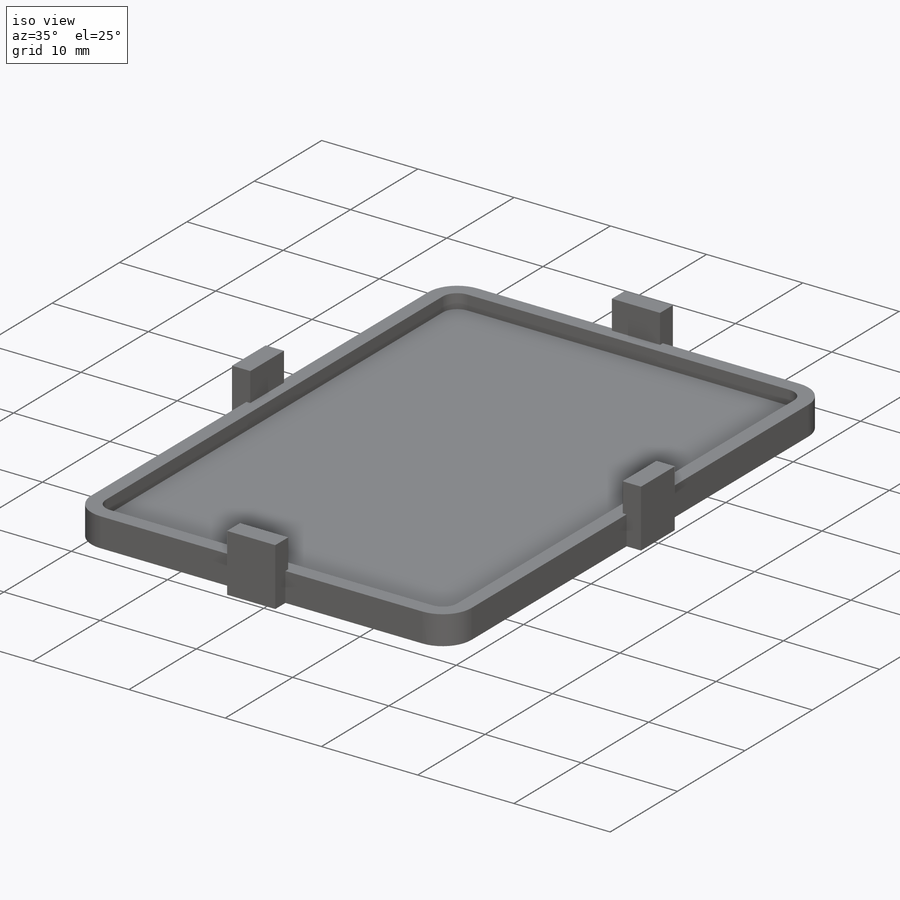
[diagram: iso view]
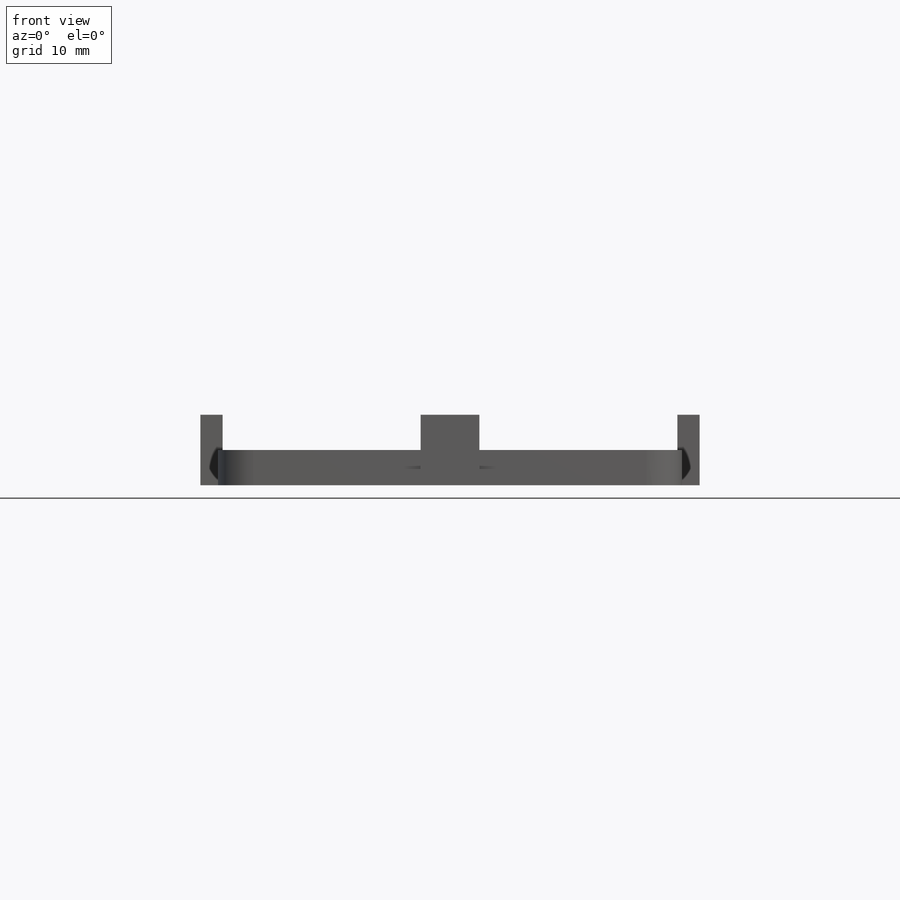
[diagram: front view]
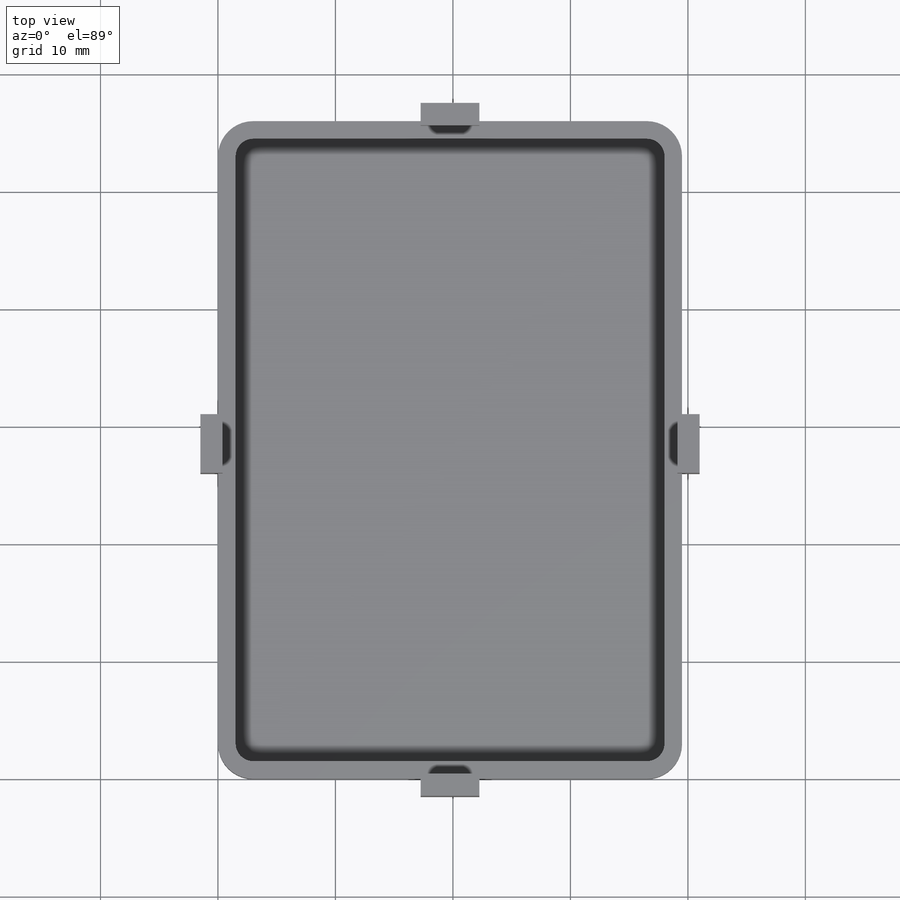
[diagram: top view]
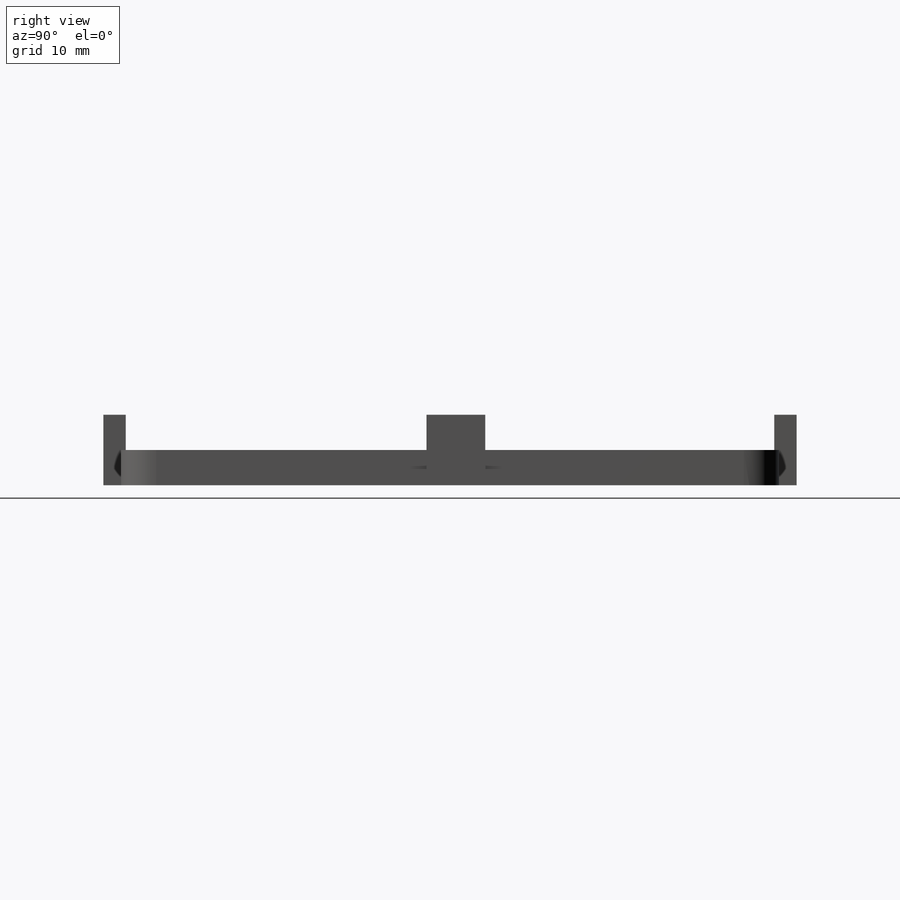
[diagram: right view]
SOLIDWORKS PART (.sldprt)
format: sldprt  version: not decoded by parser v0  size: 270,848 bytes
history: native  units: mm
features: sketch x5, extrude x5, plane x2, mirror x2, material x1, fillet x1, shell x1 (+13 scaffold rows collapsed)
feature tree (30):
  scaffold x13  (default folders/planes/origin — collapsed)
  material  "Material <not specified>"
  sketch  "Sketch1"  dims[D1=39.5mm D2=56.0mm]
  extrude  "Boss-Extrude1"  Depth=3mm
  fillet  "Fillet1"  Radius=3mm
  shell  "Shell1"  Thickness=1.5mm
  sketch  "Sketch2"  dims[D1=5.0mm D2=3.0mm D3=0.0mm D4=25.0mm]
  extrude  "Boss-Extrude2"  Depth=1.5mm
  sketch  "Sketch3"  dims[D1=5.0mm D2=1.9mm D3=0.0mm D4=0.0mm]
  extrude  "Boss-Extrude3"  Depth=3mm
  plane  "Plane2"  Offset=19.75mm
  sketch  "Sketch8"  dims[D1=5.0mm D2=3.0mm D3=0.0mm D4=17.25mm]
  extrude  "Boss-Extrude5"  Depth=1.5mm
  sketch  "Sketch9"  dims[D1=1.9mm D2=5.0mm D3=0.0mm D4=0.0mm]
  extrude  "Boss-Extrude6"  Depth=3mm
  plane  "Plane3"  Offset=28mm
  mirror  "Mirror3"
  mirror  "Mirror4"
decode coverage: 12 of 14 modeling features carry decoded parameters
note: suppression state not decoded; provenance and decode notes live in map.json
